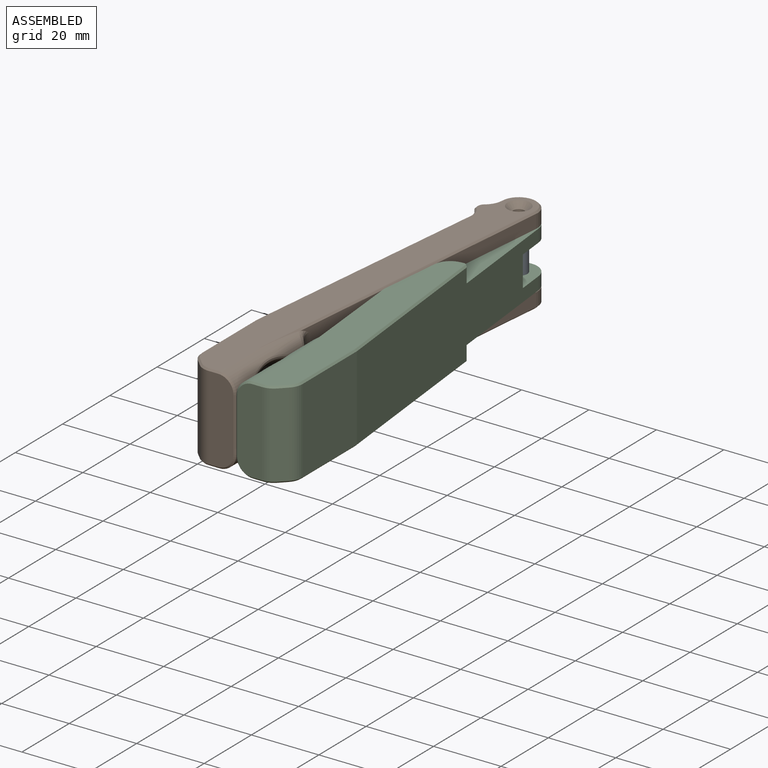
[diagram: assembled view]
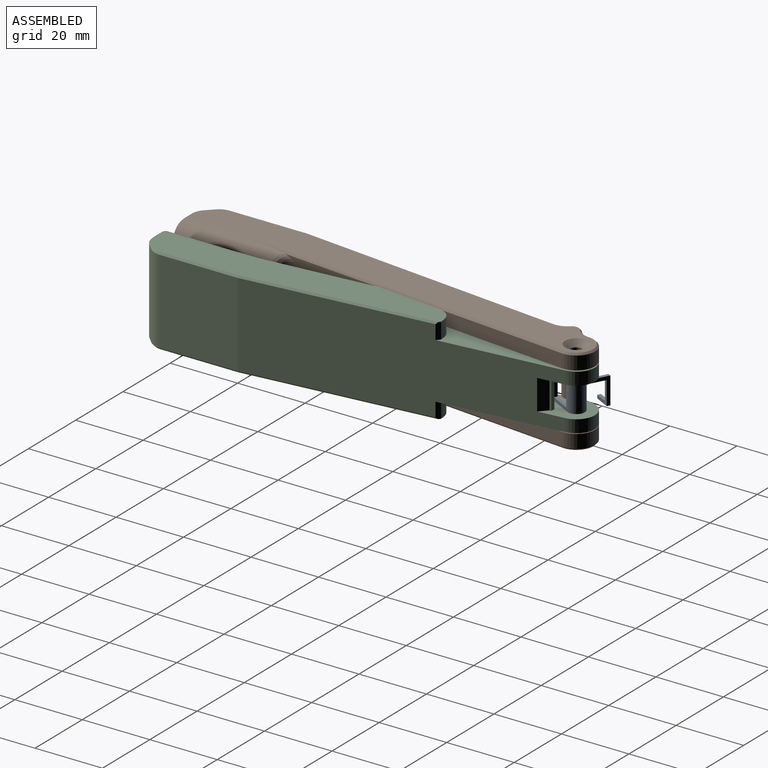
[diagram: assembled view, second angle]
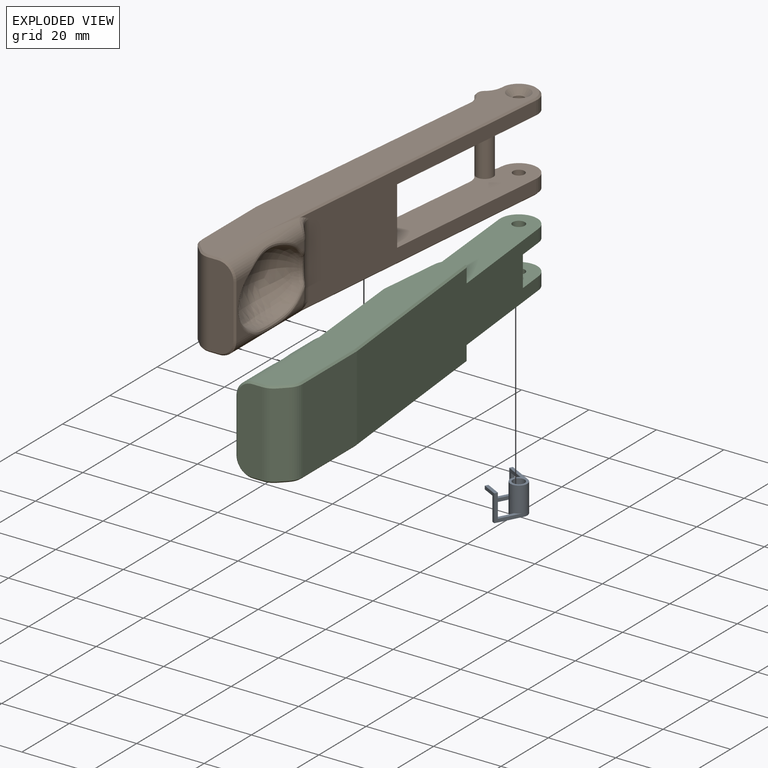
[diagram: exploded view]
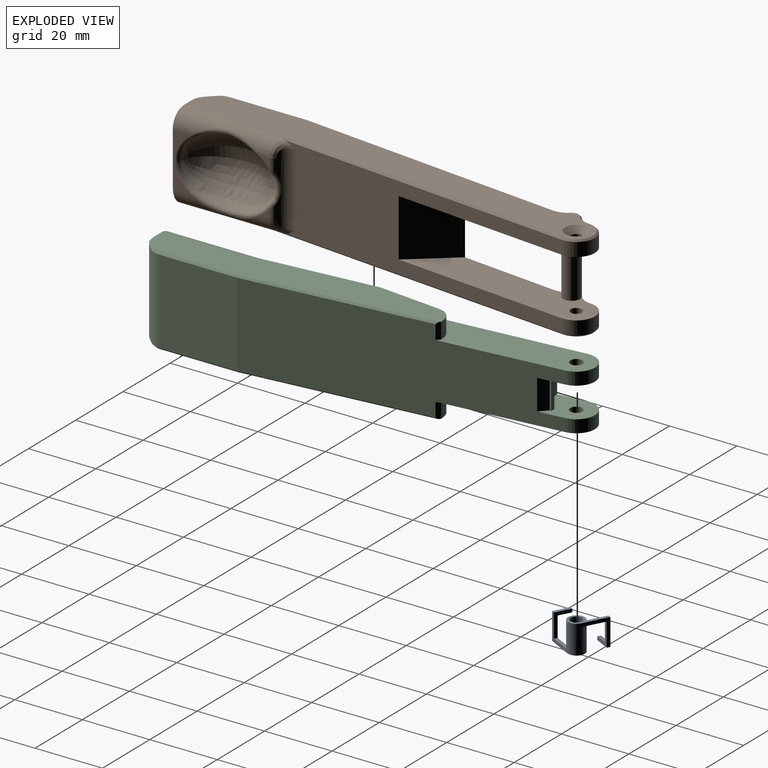
[diagram: exploded view, second angle]
ASSEMBLY  parts=3 mates=2
PART A: 20 faces, bbox 10.5x8.5x10.5 mm
  f0: plane 7x1mm, normal (0,-1,0), area 5.6mm2, adj f1,f13,f15,f17
  f1: cylinder r=2.5mm len=8.5mm, axis (0,1,0), area 128.9mm2, adj f0,f2,f3,f5,f6,f7,f13,f15
  f2: plane 7x6mm, normal (0,0,1), area 12mm2, adj f1,f3,f5,f8,f9,f11
  f3: plane 7x1mm, normal (0,1,0), area 5.6mm2, adj f1,f2,f7,f9
  f4: cylinder r=1.75mm len=8.5mm, axis (0,1,0), area 93.5mm2, adj f5,f6
  f5: plane 10.5x5mm, normal (0,-1,0), area 16.6mm2, adj f1,f2,f4,f7,f8
  f6: plane 10.5x5mm, normal (0,1,0), area 16.6mm2, adj f1,f4,f13,f14,f15
  f7: plane 8x8mm, normal (0,0,-1), area 15mm2, adj f1,f3,f5,f8,f9,f10
  f8: plane 8x5mm, normal (1,0,0), area 12mm2, adj f2,f5,f7,f10,f11,f12
  f9: plane 7x5mm, normal (-1,0,0), area 11mm2, adj f2,f3,f7,f10,f11,f12
  f10: plane 5x1mm, normal (0,1,0), area 5mm2, adj f7,f8,f9,f12
  f11: plane 4x1mm, normal (0,-1,0), area 4mm2, adj f2,f8,f9,f12
  f12: plane 1x1mm, normal (0,0,1), area 1mm2, adj f8,f9,f10,f11
  f13: plane 8x8mm, normal (-1,0,0), area 15mm2, adj f0,f1,f6,f14,f16,f17
  f14: plane 8x5mm, normal (0,0,1), area 12mm2, adj f6,f13,f15,f16,f18,f19
  f15: plane 7x6mm, normal (1,0,0), area 12mm2, adj f0,f1,f6,f14,f17,f18
  f16: plane 5x1mm, normal (0,-1,0), area 5mm2, adj f13,f14,f17,f19
  f17: plane 7x5mm, normal (0,0,-1), area 11mm2, adj f0,f13,f15,f16,f18,f19
  f18: plane 4x1mm, normal (0,1,0), area 4mm2, adj f14,f15,f17,f19
  f19: plane 1x1mm, normal (1,0,0), area 1mm2, adj f14,f16,f17,f18
PART B: 80 faces, bbox 20.5x125.5x26 mm
  f0: cylinder r=2mm len=3.76mm, axis (0,0,1), area 5.6mm2, adj f8,f16,f40,f78
  f1: plane 124.5x19.5mm, normal (0,0,1), area 1250.7mm2, adj f18,f33,f34,f35,f36,f37,f38,f43
  f2: cylinder r=1.7mm len=3.4mm, axis (0,0,-1), area 16mm2, adj f24,f39
  f3: plane 4x0.73mm, normal (0.99,0.1,0), area 2.9mm2, adj f6,f23,f27,f69
  f4: plane 4x0.73mm, normal (0.99,0.1,0), area 2.9mm2, adj f13,f24,f29,f45
  f5: plane 78.47x25mm, normal (0.99,0.1,0), area 1484.2mm2, adj f22,f23,f24,f25,f28,f30,f49,f65
  f6: cylinder r=5.5mm len=10.97mm, axis (0,0,-1), area 68.9mm2, adj f3,f7,f23,f70
  f7: plane 88.02x25.01mm, normal (-1,-0.09,0), area 1245.8mm2, adj f6,f13,f16,f23,f24,f25,f40,f42
  f8: plane 2.73x2.53mm, normal (-1,0,0), area 3.1mm2, adj f0,f17,f79
  f9: plane 16.01x5.28mm, normal (-1,0,0), area 32.2mm2, adj f17,f18,f57,f74
  f10: plane 2.73x2.53mm, normal (-1,0,0), area 3.1mm2, adj f18,f41,f73
  f11: plane 25x7.43mm, normal (0,-1,0), area 177mm2, adj f20,f55,f56,f57,f58,f59
  f12: plane 25x22.67mm, normal (1,0,0), area 566.7mm2, adj f21,f22,f51,f63
  f13: cylinder r=5.5mm len=10.97mm, axis (0,0,-1), area 68.9mm2, adj f4,f7,f24,f44
  f14: plane 124.5x19.5mm, normal (0,0,-1), area 1242.4mm2, adj f17,f32,f59,f60,f61,f62,f63,f64
  f15: revolved ~27.66x19.84mm, area 702.9mm2, adj f72,f73,f74,f75,f76,f77,f78,f79
  f16: cylinder r=5mm len=21.93mm, axis (0,0,1), area 86.4mm2, adj f0,f7,f40,f41,f42,f76
  f17: cylinder r=5mm len=30.64mm, axis (0,-1,0), area 165.1mm2, adj f8,f9,f14,f40,f58,f71,f77
  f18: cylinder r=5mm len=30.64mm, axis (0,1,0), area 165.1mm2, adj f1,f9,f10,f42,f43,f56,f72
  f19: plane 25x2.07mm, normal (0.71,-0.71,0), area 73.2mm2, adj f20,f21,f53,f61
  f20: cylinder r=5mm len=25mm, axis (0,0,1), area 98.2mm2, adj f11,f19,f54,f60
  f21: cylinder r=5mm len=25mm, axis (0,0,-1), area 98.2mm2, adj f12,f19,f52,f62
  f22: cylinder r=5mm len=25mm, axis (0,0,-1), area 13.1mm2, adj f5,f12,f50,f64
  f23: plane 57.79x15.22mm, normal (0,0,1), area 551.1mm2, adj f3,f5,f6,f7,f25,f26,f27,f28
  f24: plane 57.79x15.22mm, normal (0,0,-1), area 551.1mm2, adj f2,f4,f5,f7,f13,f25,f26,f29
  f25: plane 17x12.45mm, normal (-0.77,0.64,0), area 274.6mm2, adj f5,f7,f23,f24
  f26: cylinder r=2.5mm len=25mm, axis (0,0,-1), area 300.7mm2, adj f23,f24,f27,f28,f29,f30,f47,f67
  f27: cylinder r=5mm len=4mm, axis (0,0,-1), area 16.8mm2, adj f3,f23,f26,f68
  f28: cylinder r=5mm len=4mm, axis (0,0,-1), area 16.8mm2, adj f5,f23,f26,f66
  f29: cylinder r=5mm len=4mm, axis (0,0,-1), area 16.8mm2, adj f4,f24,f26,f46
  f30: cylinder r=5mm len=4mm, axis (0,0,-1), area 16.8mm2, adj f5,f24,f26,f48
  f31: cylinder r=1.7mm len=3.4mm, axis (0,0,-1), area 30.3mm2, adj f23,f32
  f32: cone r=1.7mm half-angle=45deg, axis (0,0,-1), area 37.3mm2, adj f14,f31
  f33: plane 3.23x3mm, normal (1,0,0), area 9.7mm2, adj f1,f34,f38,f39
  f34: plane 3x2.8mm, normal (0.5,0.87,0), area 9.7mm2, adj f1,f33,f35,f39
  f35: plane 3x2.8mm, normal (-0.5,0.87,0), area 9.7mm2, adj f1,f34,f36,f39
  f36: plane 3.23x3mm, normal (-1,0,0), area 9.7mm2, adj f1,f35,f37,f39
  f37: plane 3x2.8mm, normal (-0.5,-0.87,0), area 9.7mm2, adj f1,f36,f38,f39
  f38: plane 3x2.8mm, normal (0.5,-0.87,0), area 9.7mm2, adj f1,f33,f37,f39
  f39: plane 6.47x5.6mm, normal (0,0,1), area 18.1mm2, adj f2,f33,f34,f35,f36,f37,f38
  f40: bspline ~6.64x5.84mm, area 13.1mm2, adj f0,f7,f16,f17,f71
  f41: cylinder r=2mm len=3.76mm, axis (0,0,1), area 5.6mm2, adj f10,f16,f42,f75
  f42: bspline ~6.64x5.84mm, area 13.1mm2, adj f7,f16,f18,f41,f43
  f43: plane 105.36x10.49mm, normal (-0.7,-0.07,0.71), area 65.7mm2, adj f1,f7,f18,f42,f44
  f44: cone r=5mm half-angle=45deg, axis (0,0,-1), area 11.6mm2, adj f1,f13,f43,f45
  f45: plane 0.78x0.57mm, normal (0.7,0.07,0.71), area 0.5mm2, adj f1,f4,f44,f46
  f46: cone r=5.5mm half-angle=45deg, axis (0,0,1), area 3.1mm2, adj f1,f29,f45,f47
  f47: cone r=2.5mm half-angle=45deg, axis (0,0,-1), area 2.7mm2, adj f1,f26,f46,f48
  f48: cone r=5.5mm half-angle=45deg, axis (0,0,1), area 3.1mm2, adj f1,f30,f47,f49
  f49: plane 78.52x8.75mm, normal (0.7,0.07,0.71), area 55.8mm2, adj f1,f5,f48,f50
  f50: cone r=4.5mm half-angle=45deg, axis (0,0,-1), area 0.4mm2, adj f1,f22,f49,f51
  f51: plane 22.67x0.5mm, normal (0.71,0,0.71), area 16mm2, adj f1,f12,f50,f52
  f52: cone r=4.5mm half-angle=45deg, axis (0,0,-1), area 2.6mm2, adj f1,f21,f51,f53
  f53: plane 2.42x2.42mm, normal (0.5,-0.5,0.71), area 2.1mm2, adj f1,f19,f52,f54
  f54: cone r=4.5mm half-angle=45deg, axis (0,0,-1), area 2.6mm2, adj f1,f20,f53,f55
  f55: plane 2.93x0.5mm, normal (0,-0.71,0.71), area 2.1mm2, adj f1,f11,f54,f56
  f56: cone r=4.5mm half-angle=45deg, axis (0,1,0), area 5.3mm2, adj f11,f18,f55,f57
  f57: plane 16x0.5mm, normal (-0.71,-0.71,0), area 11.3mm2, adj f9,f11,f56,f58
  f58: cone r=4.5mm half-angle=45deg, axis (0,1,0), area 5.3mm2, adj f11,f17,f57,f59
  f59: plane 2.93x0.5mm, normal (0,-0.71,-0.71), area 2.1mm2, adj f11,f14,f58,f60
  f60: cone r=4.5mm half-angle=45deg, axis (0,0,1), area 2.6mm2, adj f14,f20,f59,f61
  f61: plane 2.42x2.42mm, normal (0.5,-0.5,-0.71), area 2.1mm2, adj f14,f19,f60,f62
  f62: cone r=4.5mm half-angle=45deg, axis (0,0,1), area 2.6mm2, adj f14,f21,f61,f63
  f63: plane 22.67x0.5mm, normal (0.71,0,-0.71), area 16mm2, adj f12,f14,f62,f64
  f64: cone r=4.5mm half-angle=45deg, axis (0,0,1), area 0.4mm2, adj f14,f22,f63,f65
  f65: plane 78.52x8.75mm, normal (0.7,0.07,-0.71), area 55.8mm2, adj f5,f14,f64,f66
  f66: cone r=5.5mm half-angle=45deg, axis (0,0,-1), area 3.1mm2, adj f14,f28,f65,f67
  f67: cone r=2mm half-angle=45deg, axis (0,0,1), area 2.7mm2, adj f14,f26,f66,f68
  f68: cone r=5.5mm half-angle=45deg, axis (0,0,-1), area 3.1mm2, adj f14,f27,f67,f69
  f69: plane 0.78x0.57mm, normal (0.7,0.07,-0.71), area 0.5mm2, adj f3,f14,f68,f70
  f70: cone r=5.5mm half-angle=45deg, axis (0,0,1), area 11.6mm2, adj f6,f14,f69,f71
  f71: plane 105.36x10.49mm, normal (-0.7,-0.07,-0.71), area 65.7mm2, adj f7,f14,f17,f40,f70
  f72: bspline ~22.36x5.08mm, area 40.4mm2, adj f15,f18,f73,f74
  f73: bspline ~5.8x5.62mm, area 5.2mm2, adj f10,f15,f72,f75
  f74: bspline ~17.81x6.67mm, area 26.4mm2, adj f9,f15,f72,f77
  f75: bspline ~2.61x2.49mm, area 3.2mm2, adj f15,f41,f73,f76
  f76: bspline ~9.35x2.8mm, area 16.3mm2, adj f15,f16,f75,f78
  f77: bspline ~22.36x5.08mm, area 40.4mm2, adj f15,f17,f74,f79
  f78: bspline ~2.98x2.72mm, area 3.2mm2, adj f0,f15,f76,f79
  f79: bspline ~5.8x5.62mm, area 5.2mm2, adj f8,f15,f77,f78
PART C: 70 faces, bbox 20.5x125.5x26 mm
  f0: cylinder r=2mm len=3.35mm, axis (0,0,1), area 4.7mm2, adj f9,f16,f61,f66
  f1: plane 9x4.67mm, normal (-0.09,1,0), area 42.3mm2, adj f5,f46,f47,f52
  f2: plane 90.31x25mm, normal (0.99,0.1,0), area 1893.1mm2, adj f3,f4,f8,f22,f24,f40,f42,f46
  f3: cylinder r=5.5mm len=10.97mm, axis (0,0,-1), area 64.6mm2, adj f2,f5,f42,f46
  f4: cylinder r=5.5mm len=10.97mm, axis (0,0,-1), area 64.6mm2, adj f2,f5,f40,f47
  f5: plane 88.01x25mm, normal (-1,-0.09,0), area 1543.3mm2, adj f1,f3,f4,f7,f16,f23,f40,f42
  f6: plane 85.11x14.06mm, normal (0,0,-1), area 816.7mm2, adj f7,f8,f17,f26,f28,f30,f32,f34
  f7: plane 48.11x4.83mm, normal (-0.7,-0.07,-0.71), area 24.2mm2, adj f5,f6,f17,f49,f61
  f8: plane 54.96x6.28mm, normal (0.7,0.07,-0.71), area 38.9mm2, adj f2,f6,f26,f57
  f9: plane 2.03x1.84mm, normal (-1,0,0), area 1.7mm2, adj f0,f17,f68
  f10: plane 16.01x4.39mm, normal (-1,0,0), area 28.1mm2, adj f17,f18,f39,f67
  f11: plane 2.03x1.84mm, normal (-1,0,0), area 1.7mm2, adj f18,f60,f63
  f12: plane 25x7.43mm, normal (0,-1,0), area 177mm2, adj f20,f35,f36,f37,f38,f39
  f13: plane 25x22.67mm, normal (1,0,0), area 566.7mm2, adj f21,f22,f27,f28
  f14: plane 85.11x14.06mm, normal (0,0,1), area 816.7mm2, adj f18,f23,f24,f25,f27,f29,f31,f33
  f15: revolved ~27.7x21.83mm, area 773.6mm2, adj f62,f63,f64,f65,f66,f67,f68,f69
  f16: cylinder r=5mm len=21.93mm, axis (0,0,1), area 85.5mm2, adj f0,f5,f59,f60,f61,f64
  f17: cylinder r=5mm len=30.64mm, axis (0,-1,0), area 136.9mm2, adj f6,f7,f9,f10,f38,f61,f69
  f18: cylinder r=5mm len=30.64mm, axis (0,1,0), area 136.9mm2, adj f10,f11,f14,f23,f37,f59,f65
  f19: plane 25x2.07mm, normal (0.71,-0.71,0), area 73.2mm2, adj f20,f21,f31,f32
  f20: cylinder r=5mm len=25mm, axis (0,0,1), area 98.2mm2, adj f12,f19,f33,f34
  f21: cylinder r=5mm len=25mm, axis (0,0,-1), area 98.2mm2, adj f13,f19,f29,f30
  f22: cylinder r=5mm len=25mm, axis (0,0,-1), area 13.1mm2, adj f2,f13,f25,f26
  f23: plane 48.11x4.83mm, normal (-0.7,-0.07,0.71), area 24.2mm2, adj f5,f14,f18,f48,f59
  f24: plane 54.96x6.28mm, normal (0.7,0.07,0.71), area 38.9mm2, adj f2,f14,f25,f58
  f25: cone r=4.5mm half-angle=45deg, axis (0,0,-1), area 0.4mm2, adj f14,f22,f24,f27
  f26: cone r=4.5mm half-angle=45deg, axis (0,0,1), area 0.4mm2, adj f6,f8,f22,f28
  f27: plane 22.67x0.5mm, normal (0.71,0,0.71), area 16mm2, adj f13,f14,f25,f29
  f28: plane 22.67x0.5mm, normal (0.71,0,-0.71), area 16mm2, adj f6,f13,f26,f30
  f29: cone r=4.5mm half-angle=45deg, axis (0,0,-1), area 2.6mm2, adj f14,f21,f27,f31
  f30: cone r=4.5mm half-angle=45deg, axis (0,0,1), area 2.6mm2, adj f6,f21,f28,f32
  f31: plane 2.42x2.42mm, normal (0.5,-0.5,0.71), area 2.1mm2, adj f14,f19,f29,f33
  f32: plane 2.42x2.42mm, normal (0.5,-0.5,-0.71), area 2.1mm2, adj f6,f19,f30,f34
  f33: cone r=4.5mm half-angle=45deg, axis (0,0,-1), area 2.6mm2, adj f14,f20,f31,f35
  f34: cone r=4.5mm half-angle=45deg, axis (0,0,1), area 2.6mm2, adj f6,f20,f32,f36
  f35: plane 2.93x0.5mm, normal (0,-0.71,0.71), area 2.1mm2, adj f12,f14,f33,f37
  f36: plane 2.93x0.5mm, normal (0,-0.71,-0.71), area 2.1mm2, adj f6,f12,f34,f38
  f37: cone r=4.5mm half-angle=45deg, axis (0,1,0), area 5.3mm2, adj f12,f18,f35,f39
  f38: cone r=4.5mm half-angle=45deg, axis (0,1,0), area 5.3mm2, adj f12,f17,f36,f39
  f39: plane 16x0.5mm, normal (-0.71,-0.71,0), area 11.3mm2, adj f10,f12,f37,f38
  f40: plane 65.75x14.74mm, normal (0,0,-1), area 495mm2, adj f2,f4,f5,f41,f45,f49,f55,f57
  f41: plane 4.75x1.26mm, normal (-0.09,1,0), area 6mm2, adj f6,f40,f55,f57
  f42: plane 65.75x14.74mm, normal (0,0,1), area 495mm2, adj f2,f3,f5,f43,f44,f48,f56,f58
  f43: plane 4.75x1.26mm, normal (-0.09,1,0), area 6mm2, adj f14,f42,f56,f58
  f44: cylinder r=1.8mm len=3.75mm, axis (0,0,-1), area 42.4mm2, adj f42,f46
  f45: cylinder r=1.8mm len=3.75mm, axis (0,0,-1), area 42.4mm2, adj f40,f47
  f46: plane 14.48x11.79mm, normal (0,0,-1), area 115.7mm2, adj f1,f2,f3,f5,f44,f50,f51,f52
  f47: plane 14.48x11.79mm, normal (0,0,1), area 115.7mm2, adj f1,f2,f4,f5,f45,f50,f51,f52
  f48: plane 21.28x4.75mm, normal (-0.99,0.1,0), area 101mm2, adj f5,f14,f23,f42,f56
  f49: plane 21.28x4.75mm, normal (-0.99,0.1,0), area 101mm2, adj f5,f6,f7,f40,f55
  f50: plane 9x1.27mm, normal (0,1,0), area 11.4mm2, adj f46,f47,f51,f53
  f51: plane 9x0.55mm, normal (1,0,0), area 5mm2, adj f46,f47,f50,f54
  f52: plane 9x1.2mm, normal (-1,0,0), area 10.8mm2, adj f1,f46,f47,f53
  f53: plane 9x2.73mm, normal (-0.71,0.71,0), area 34.7mm2, adj f46,f47,f50,f52
  f54: plane 9x2.29mm, normal (0.67,0.74,0), area 27.9mm2, adj f2,f46,f47,f51
  f55: cylinder r=5mm len=4.75mm, axis (0,0,-1), area 32.6mm2, adj f6,f40,f41,f49
  f56: cylinder r=5mm len=4.75mm, axis (0,0,-1), area 32.6mm2, adj f14,f42,f43,f48
  f57: plane 4.75x1.1mm, normal (0.63,0.77,0), area 6.6mm2, adj f2,f6,f8,f40,f41
  f58: plane 4.75x1.1mm, normal (0.63,0.77,0), area 6.6mm2, adj f2,f14,f24,f42,f43
  f59: bspline ~6.64x5.84mm, area 13.1mm2, adj f5,f16,f18,f23,f60
  f60: cylinder r=2mm len=3.35mm, axis (0,0,1), area 4.7mm2, adj f11,f16,f59,f62
  f61: bspline ~6.64x5.84mm, area 13.1mm2, adj f0,f5,f7,f16,f17
  f62: bspline ~3.15x2.66mm, area 3.4mm2, adj f15,f60,f63,f64
  f63: bspline ~4.78x4.49mm, area 3.8mm2, adj f11,f15,f62,f65
  f64: bspline ~10.34x2.97mm, area 18.3mm2, adj f15,f16,f62,f66
  f65: bspline ~23.58x6.01mm, area 49.1mm2, adj f15,f18,f63,f67
  f66: bspline ~2.83x2.53mm, area 3.4mm2, adj f0,f15,f64,f68
  f67: bspline ~18.05x5.69mm, area 25.4mm2, adj f10,f15,f65,f69
  f68: bspline ~4.63x4.39mm, area 3.8mm2, adj f9,f15,f66,f69
  f69: bspline ~23.58x6.01mm, area 49.1mm2, adj f15,f17,f67,f68
PLACE A rot(axis=(-0.17,-0.7,0.7),160.5deg) t=(-17.49,38.19,-1.92)mm
PLACE B rot(axis=(0,-1,0),180deg) t=(-17.49,38.19,15.66)mm
PLACE C t=(-17.49,38.19,-10.42)mm fixed
MATE revolute C.f3 <-> B.f2  axis (0,0,1) through (-17.49,38.19,10.83)mm
MATE revolute A.f1 <-> C.f44  axis (0,0,-1) through (-17.49,38.19,-1.92)mm
